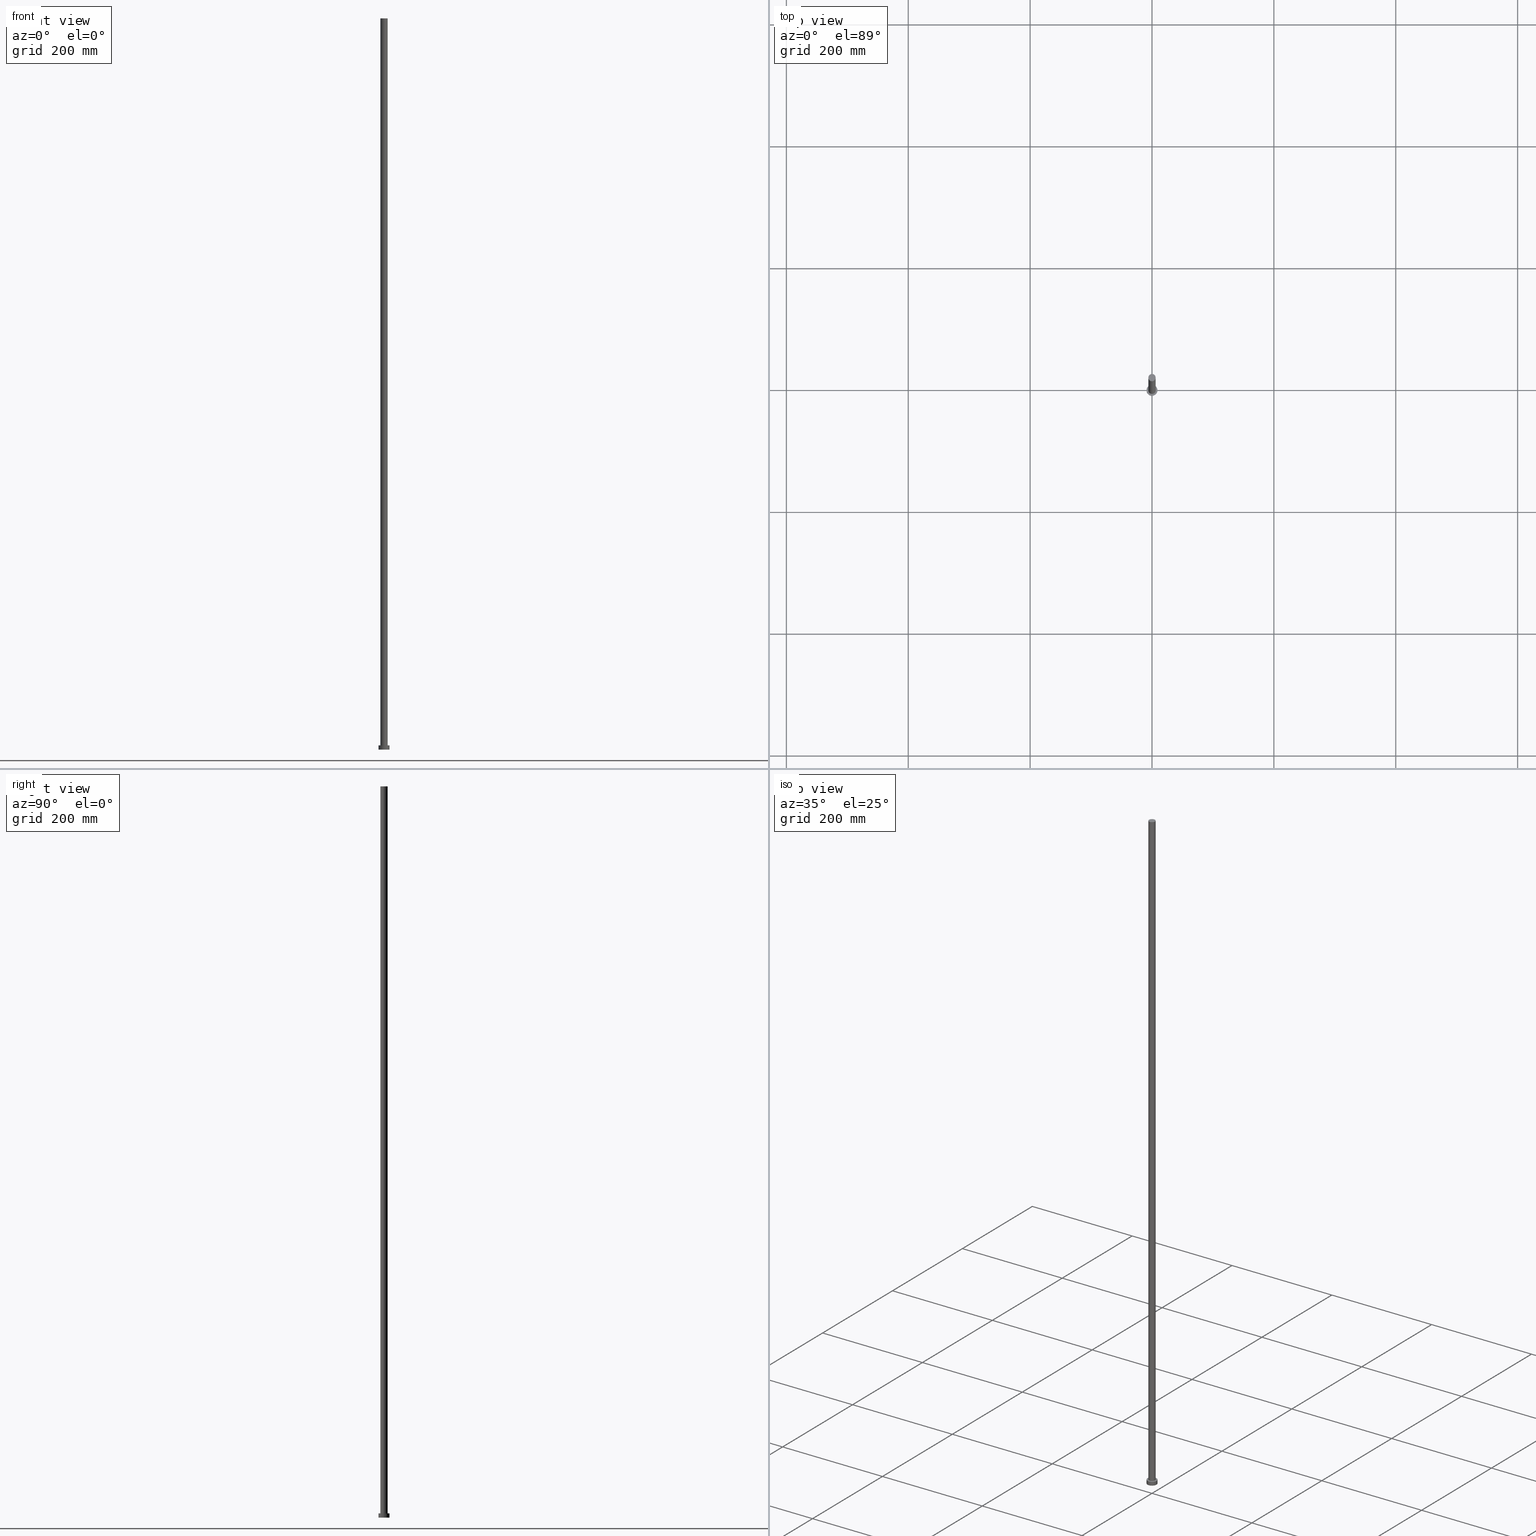
[diagram: canonical four-view strip — front | top / right | iso, engineering-drawing reading convention]
A machine part, canonical four-view strip (front | top / right | iso — engineering-drawing reading convention). The complete STEP part file that produces these views, byte-faithful:
ISO-10303-21;
HEADER;
FILE_DESCRIPTION (( 'STEP AP203' ),
    '1' );
FILE_NAME ('e8db.STEP',
    '2023-02-12T11:04:13',
    ( '' ),
    ( '' ),
    'SwSTEP 2.0',
    'SolidWorks 2019',
    '' );
FILE_SCHEMA (( 'CONFIG_CONTROL_DESIGN' ));
ENDSEC;

DATA;
#1 = DIRECTION ( 'NONE',  ( 1.000000000000000000, 0.000000000000000000, 0.000000000000000000 ) ) ;
#2 = CIRCLE ( 'NONE', #51, 6.000000000000000888 ) ;
#3 = LINE ( 'NONE', #255, #222 ) ;
#4 = PERSON_AND_ORGANIZATION ( #10, #39 ) ;
#5 = CC_DESIGN_SECURITY_CLASSIFICATION ( #114, ( #146 ) ) ;
#6 = DATE_TIME_ROLE ( 'classification_date' ) ;
#7 = CC_DESIGN_APPROVAL ( #141, ( #254 ) ) ;
#8 = EDGE_CURVE ( 'NONE', #34, #202, #127, .T. ) ;
#9 = DIRECTION ( 'NONE',  ( 1.000000000000000000, 0.000000000000000000, -0.000000000000000000 ) ) ;
#10 = PERSON ( 'NEUR�EN�', 'NEUR�EN�', 'NEUR�EN�', ('NEUR�EN�'), ('NEUR�EN�'), ('NEUR�EN�') ) ;
#11 = DIRECTION ( 'NONE',  ( -0.000000000000000000, -0.000000000000000000, -1.000000000000000000 ) ) ;
#12 = FACE_OUTER_BOUND ( 'NONE', #218, .T. ) ;
#13 = DIRECTION ( 'NONE',  ( -1.000000000000000000, 0.000000000000000000, 0.000000000000000000 ) ) ;
#14 = ORIENTED_EDGE ( 'NONE', *, *, #149, .F. ) ;
#15 = AXIS2_PLACEMENT_3D ( 'NONE', #139, #17, #13 ) ;
#16 = APPLICATION_PROTOCOL_DEFINITION ( 'international standard', 'config_control_design', 1994, #182 ) ;
#17 = DIRECTION ( 'NONE',  ( -0.000000000000000000, -0.000000000000000000, -1.000000000000000000 ) ) ;
#18 = UNCERTAINTY_MEASURE_WITH_UNIT (LENGTH_MEASURE( 1.000000000000000082E-05 ), #72, 'distance_accuracy_value', 'NONE');
#19 = DIRECTION ( 'NONE',  ( 1.000000000000000000, 0.000000000000000000, 0.000000000000000000 ) ) ;
#20 = ORIENTED_EDGE ( 'NONE', *, *, #145, .T. ) ;
#21 = DIRECTION ( 'NONE',  ( -0.000000000000000000, -0.000000000000000000, -1.000000000000000000 ) ) ;
#22 = AXIS2_PLACEMENT_3D ( 'NONE', #170, #97, #192 ) ;
#23 = ORIENTED_EDGE ( 'NONE', *, *, #149, .T. ) ;
#24 = DATE_TIME_ROLE ( 'creation_date' ) ;
#25 = PERSON_AND_ORGANIZATION ( #10, #39 ) ;
#26 = CC_DESIGN_PERSON_AND_ORGANIZATION_ASSIGNMENT ( #25, #158, ( #114 ) ) ;
#27 = CIRCLE ( 'NONE', #183, 9.000000000000000000 ) ;
#28 = PRODUCT ( 'e8db', 'e8db', '', ( #134 ) ) ;
#29 = LINE ( 'NONE', #87, #118 ) ;
#30 = PRODUCT_RELATED_PRODUCT_CATEGORY ( 'detail', '', ( #28 ) ) ;
#31 = PLANE ( 'NONE',  #190 ) ;
#32 = ADVANCED_FACE ( 'NONE', ( #102, #223 ), #239, .T. ) ;
#33 = PERSON_AND_ORGANIZATION_ROLE ( 'design_owner' ) ;
#34 = VERTEX_POINT ( 'NONE', #178 ) ;
#35 =( GEOMETRIC_REPRESENTATION_CONTEXT ( 3 ) GLOBAL_UNCERTAINTY_ASSIGNED_CONTEXT ( ( #18 ) ) GLOBAL_UNIT_ASSIGNED_CONTEXT ( ( #72, #155, #251 ) ) REPRESENTATION_CONTEXT ( 'NONE', 'WORKASPACE' ) );
#36 = EDGE_LOOP ( 'NONE', ( #49, #93 ) ) ;
#37 = DIRECTION ( 'NONE',  ( 0.000000000000000000, 0.000000000000000000, 1.000000000000000000 ) ) ;
#38 = CALENDAR_DATE ( 2023, 12, 2 ) ;
#39 = ORGANIZATION ( 'NEUR�EN�', 'NEUR�EN�', '' ) ;
#40 = CLOSED_SHELL ( 'NONE', ( #53, #63, #235, #32, #111, #42, #219 ) ) ;
#41 = COORDINATED_UNIVERSAL_TIME_OFFSET ( 1, 0, .AHEAD. ) ;
#42 = ADVANCED_FACE ( 'NONE', ( #229 ), #129, .T. ) ;
#43 = COORDINATED_UNIVERSAL_TIME_OFFSET ( 1, 0, .AHEAD. ) ;
#44 = DATE_AND_TIME ( #38, #88 ) ;
#45 = CC_DESIGN_PERSON_AND_ORGANIZATION_ASSIGNMENT ( #171, #33, ( #28 ) ) ;
#46 = CIRCLE ( 'NONE', #162, 9.000000000000000000 ) ;
#47 = CARTESIAN_POINT ( 'NONE',  ( -9.000000000000000000, 0.000000000000000000, 7.000000000000000000 ) ) ;
#48 = LOCAL_TIME ( 12, 4, 13.00000000000000000, #99 ) ;
#49 = ORIENTED_EDGE ( 'NONE', *, *, #85, .T. ) ;
#50 = DIRECTION ( 'NONE',  ( -1.000000000000000000, 0.000000000000000000, 0.000000000000000000 ) ) ;
#51 = AXIS2_PLACEMENT_3D ( 'NONE', #55, #113, #1 ) ;
#52 = CARTESIAN_POINT ( 'NONE',  ( 0.000000000000000000, 0.000000000000000000, 1200.000000000000000 ) ) ;
#53 = ADVANCED_FACE ( 'NONE', ( #224 ), #179, .T. ) ;
#54 = DIRECTION ( 'NONE',  ( 0.000000000000000000, 0.000000000000000000, 1.000000000000000000 ) ) ;
#55 = CARTESIAN_POINT ( 'NONE',  ( 0.000000000000000000, 0.000000000000000000, 1200.000000000000000 ) ) ;
#56 = VERTEX_POINT ( 'NONE', #248 ) ;
#57 = CC_DESIGN_PERSON_AND_ORGANIZATION_ASSIGNMENT ( #100, #173, ( #254 ) ) ;
#58 = ORIENTED_EDGE ( 'NONE', *, *, #8, .T. ) ;
#59 = VERTEX_POINT ( 'NONE', #108 ) ;
#60 = ORIENTED_EDGE ( 'NONE', *, *, #184, .T. ) ;
#61 = DATE_AND_TIME ( #159, #194 ) ;
#62 = PERSON_AND_ORGANIZATION ( #10, #39 ) ;
#63 = ADVANCED_FACE ( 'NONE', ( #64 ), #209, .T. ) ;
#64 = FACE_OUTER_BOUND ( 'NONE', #208, .T. ) ;
#65 = CARTESIAN_POINT ( 'NONE',  ( 0.000000000000000000, 0.000000000000000000, 0.000000000000000000 ) ) ;
#66 = DIRECTION ( 'NONE',  ( -0.000000000000000000, -0.000000000000000000, -1.000000000000000000 ) ) ;
#67 = ORIENTED_EDGE ( 'NONE', *, *, #147, .T. ) ;
#68 = CARTESIAN_POINT ( 'NONE',  ( -9.000000000000000000, 0.000000000000000000, 0.000000000000000000 ) ) ;
#69 = ORIENTED_EDGE ( 'NONE', *, *, #230, .F. ) ;
#70 = CC_DESIGN_APPROVAL ( #107, ( #114 ) ) ;
#71 = PERSON_AND_ORGANIZATION ( #10, #39 ) ;
#72 =( LENGTH_UNIT ( ) NAMED_UNIT ( * ) SI_UNIT ( .MILLI., .METRE. ) );
#73 = PLANE ( 'NONE',  #80 ) ;
#74 = APPROVAL_STATUS ( 'not_yet_approved' ) ;
#75 = VERTEX_POINT ( 'NONE', #177 ) ;
#76 = COORDINATED_UNIVERSAL_TIME_OFFSET ( 1, 0, .AHEAD. ) ;
#77 = CARTESIAN_POINT ( 'NONE',  ( 0.000000000000000000, 0.000000000000000000, 7.000000000000000000 ) ) ;
#78 = EDGE_CURVE ( 'NONE', #75, #138, #204, .T. ) ;
#79 = PERSON_AND_ORGANIZATION_ROLE ( 'creator' ) ;
#80 = AXIS2_PLACEMENT_3D ( 'NONE', #52, #37, #135 ) ;
#81 = APPROVAL_ROLE ( '' ) ;
#82 = DIRECTION ( 'NONE',  ( 0.000000000000000000, 0.000000000000000000, 1.000000000000000000 ) ) ;
#83 = VERTEX_POINT ( 'NONE', #151 ) ;
#84 = AXIS2_PLACEMENT_3D ( 'NONE', #207, #109, #50 ) ;
#85 = EDGE_CURVE ( 'NONE', #75, #59, #241, .T. ) ;
#86 = ORIENTED_EDGE ( 'NONE', *, *, #232, .F. ) ;
#87 = CARTESIAN_POINT ( 'NONE',  ( 9.000000000000000000, 1.102182119232617714E-15, 7.000000000000000000 ) ) ;
#88 = LOCAL_TIME ( 12, 4, 13.00000000000000000, #122 ) ;
#89 = CC_DESIGN_DATE_AND_TIME_ASSIGNMENT ( #195, #24, ( #254 ) ) ;
#90 = VECTOR ( 'NONE', #226, 1000.000000000000000 ) ;
#91 = ORIENTED_EDGE ( 'NONE', *, *, #85, .F. ) ;
#92 = DIRECTION ( 'NONE',  ( 1.000000000000000000, 0.000000000000000000, 0.000000000000000000 ) ) ;
#93 = ORIENTED_EDGE ( 'NONE', *, *, #230, .T. ) ;
#94 = CARTESIAN_POINT ( 'NONE',  ( 6.000000000000000888, 7.347880794884120722E-16, 1200.000000000000000 ) ) ;
#95 = DIRECTION ( 'NONE',  ( -0.000000000000000000, -0.000000000000000000, -1.000000000000000000 ) ) ;
#96 = EDGE_LOOP ( 'NONE', ( #67, #60 ) ) ;
#97 = DIRECTION ( 'NONE',  ( 0.000000000000000000, 0.000000000000000000, 1.000000000000000000 ) ) ;
#98 = ORIENTED_EDGE ( 'NONE', *, *, #121, .T. ) ;
#99 = COORDINATED_UNIVERSAL_TIME_OFFSET ( 1, 0, .AHEAD. ) ;
#100 = PERSON_AND_ORGANIZATION ( #10, #39 ) ;
#101 = VECTOR ( 'NONE', #95, 1000.000000000000000 ) ;
#102 = FACE_BOUND ( 'NONE', #140, .T. ) ;
#103 = EDGE_CURVE ( 'NONE', #138, #56, #46, .T. ) ;
#104 = CIRCLE ( 'NONE', #237, 6.000000000000000888 ) ;
#105 = CIRCLE ( 'NONE', #22, 6.000000000000000888 ) ;
#106 = DIRECTION ( 'NONE',  ( 1.000000000000000000, 0.000000000000000000, 0.000000000000000000 ) ) ;
#107 = APPROVAL ( #144, 'NEUR�EN�' ) ;
#108 = CARTESIAN_POINT ( 'NONE',  ( 9.000000000000000000, 1.102182119232617714E-15, 7.000000000000000000 ) ) ;
#109 = DIRECTION ( 'NONE',  ( -0.000000000000000000, -0.000000000000000000, -1.000000000000000000 ) ) ;
#110 = APPROVAL_PERSON_ORGANIZATION ( #220, #210, #238 ) ;
#111 = ADVANCED_FACE ( 'NONE', ( #12 ), #31, .F. ) ;
#112 = CARTESIAN_POINT ( 'NONE',  ( -6.000000000000000888, 0.000000000000000000, 7.000000000000000000 ) ) ;
#113 = DIRECTION ( 'NONE',  ( 0.000000000000000000, 0.000000000000000000, 1.000000000000000000 ) ) ;
#114 = SECURITY_CLASSIFICATION ( '', '', #161 ) ;
#115 = DIRECTION ( 'NONE',  ( 1.000000000000000000, 0.000000000000000000, 0.000000000000000000 ) ) ;
#116 = ORIENTED_EDGE ( 'NONE', *, *, #78, .T. ) ;
#117 = ORIENTED_EDGE ( 'NONE', *, *, #246, .T. ) ;
#118 = VECTOR ( 'NONE', #167, 1000.000000000000000 ) ;
#119 = DIRECTION ( 'NONE',  ( 0.000000000000000000, 0.000000000000000000, 1.000000000000000000 ) ) ;
#120 = ORIENTED_EDGE ( 'NONE', *, *, #145, .F. ) ;
#121 = EDGE_CURVE ( 'NONE', #56, #138, #27, .T. ) ;
#122 = COORDINATED_UNIVERSAL_TIME_OFFSET ( 1, 0, .AHEAD. ) ;
#123 = PERSON_AND_ORGANIZATION ( #10, #39 ) ;
#124 = SHAPE_DEFINITION_REPRESENTATION ( #244, #249 ) ;
#125 = CARTESIAN_POINT ( 'NONE',  ( 0.000000000000000000, 0.000000000000000000, 7.000000000000000000 ) ) ;
#126 = DATE_AND_TIME ( #175, #48 ) ;
#127 = CIRCLE ( 'NONE', #136, 6.000000000000000888 ) ;
#128 = CARTESIAN_POINT ( 'NONE',  ( 0.000000000000000000, 0.000000000000000000, 7.000000000000000000 ) ) ;
#129 = CYLINDRICAL_SURFACE ( 'NONE', #84, 6.000000000000000888 ) ;
#130 = LOCAL_TIME ( 12, 4, 13.00000000000000000, #41 ) ;
#131 = AXIS2_PLACEMENT_3D ( 'NONE', #203, #164, #106 ) ;
#132 = ORIENTED_EDGE ( 'NONE', *, *, #103, .F. ) ;
#133 = DIRECTION ( 'NONE',  ( -1.000000000000000000, 0.000000000000000000, 0.000000000000000000 ) ) ;
#134 = MECHANICAL_CONTEXT ( 'NONE', #182, 'mechanical' ) ;
#135 = DIRECTION ( 'NONE',  ( 1.000000000000000000, 0.000000000000000000, -0.000000000000000000 ) ) ;
#136 = AXIS2_PLACEMENT_3D ( 'NONE', #125, #82, #200 ) ;
#137 = APPROVAL_STATUS ( 'not_yet_approved' ) ;
#138 = VERTEX_POINT ( 'NONE', #68 ) ;
#139 = CARTESIAN_POINT ( 'NONE',  ( 0.000000000000000000, 0.000000000000000000, 7.000000000000000000 ) ) ;
#140 = EDGE_LOOP ( 'NONE', ( #86, #193 ) ) ;
#141 = APPROVAL ( #137, 'NEUR�EN�' ) ;
#142 = DIRECTION ( 'NONE',  ( 1.000000000000000000, 0.000000000000000000, -0.000000000000000000 ) ) ;
#143 = CALENDAR_DATE ( 2023, 12, 2 ) ;
#144 = APPROVAL_STATUS ( 'not_yet_approved' ) ;
#145 = EDGE_CURVE ( 'NONE', #59, #56, #29, .T. ) ;
#146 = PRODUCT_DEFINITION_FORMATION_WITH_SPECIFIED_SOURCE ( 'LIBOVOLN�', '', #28, .NOT_KNOWN. ) ;
#147 = EDGE_CURVE ( 'NONE', #252, #83, #104, .T. ) ;
#148 = DIRECTION ( 'NONE',  ( 0.000000000000000000, 0.000000000000000000, 1.000000000000000000 ) ) ;
#149 = EDGE_CURVE ( 'NONE', #83, #34, #185, .T. ) ;
#150 = DIRECTION ( 'NONE',  ( -1.000000000000000000, 0.000000000000000000, 0.000000000000000000 ) ) ;
#151 = CARTESIAN_POINT ( 'NONE',  ( 6.000000000000000888, 7.347880794884120722E-16, 1200.000000000000000 ) ) ;
#152 = DIRECTION ( 'NONE',  ( 0.000000000000000000, 0.000000000000000000, 1.000000000000000000 ) ) ;
#153 = ORIENTED_EDGE ( 'NONE', *, *, #184, .F. ) ;
#154 = CC_DESIGN_DATE_AND_TIME_ASSIGNMENT ( #174, #6, ( #114 ) ) ;
#155 =( NAMED_UNIT ( * ) PLANE_ANGLE_UNIT ( ) SI_UNIT ( $, .RADIAN. ) );
#156 = MANIFOLD_SOLID_BREP ( 'P�idat vysunut�m3', #40 ) ;
#157 = ORIENTED_EDGE ( 'NONE', *, *, #232, .T. ) ;
#158 = PERSON_AND_ORGANIZATION_ROLE ( 'classification_officer' ) ;
#159 = CALENDAR_DATE ( 2023, 12, 2 ) ;
#160 = APPROVAL_ROLE ( '' ) ;
#161 = SECURITY_CLASSIFICATION_LEVEL ( 'unclassified' ) ;
#162 = AXIS2_PLACEMENT_3D ( 'NONE', #247, #180, #201 ) ;
#163 = APPROVAL_PERSON_ORGANIZATION ( #71, #141, #81 ) ;
#164 = DIRECTION ( 'NONE',  ( 0.000000000000000000, 0.000000000000000000, 1.000000000000000000 ) ) ;
#165 = EDGE_LOOP ( 'NONE', ( #14, #234, #117, #157 ) ) ;
#166 = ORIENTED_EDGE ( 'NONE', *, *, #103, .T. ) ;
#167 = DIRECTION ( 'NONE',  ( -0.000000000000000000, -0.000000000000000000, -1.000000000000000000 ) ) ;
#168 = CARTESIAN_POINT ( 'NONE',  ( 0.000000000000000000, 0.000000000000000000, 1200.000000000000000 ) ) ;
#169 = ORIENTED_EDGE ( 'NONE', *, *, #246, .F. ) ;
#170 = CARTESIAN_POINT ( 'NONE',  ( 0.000000000000000000, 0.000000000000000000, 7.000000000000000000 ) ) ;
#171 = PERSON_AND_ORGANIZATION ( #10, #39 ) ;
#172 = FACE_OUTER_BOUND ( 'NONE', #189, .T. ) ;
#173 = PERSON_AND_ORGANIZATION_ROLE ( 'creator' ) ;
#174 = DATE_AND_TIME ( #240, #233 ) ;
#175 = CALENDAR_DATE ( 2023, 12, 2 ) ;
#176 = AXIS2_PLACEMENT_3D ( 'NONE', #216, #54, #115 ) ;
#177 = CARTESIAN_POINT ( 'NONE',  ( -9.000000000000000000, 0.000000000000000000, 7.000000000000000000 ) ) ;
#178 = CARTESIAN_POINT ( 'NONE',  ( 6.000000000000000888, 7.347880794884120722E-16, 7.000000000000000000 ) ) ;
#179 = CYLINDRICAL_SURFACE ( 'NONE', #227, 6.000000000000000888 ) ;
#180 = DIRECTION ( 'NONE',  ( 0.000000000000000000, 0.000000000000000000, 1.000000000000000000 ) ) ;
#181 = APPROVAL_PERSON_ORGANIZATION ( #62, #107, #160 ) ;
#182 = APPLICATION_CONTEXT ( 'configuration controlled 3d designs of mechanical parts and assemblies' ) ;
#183 = AXIS2_PLACEMENT_3D ( 'NONE', #65, #250, #225 ) ;
#184 = EDGE_CURVE ( 'NONE', #83, #252, #2, .T. ) ;
#185 = LINE ( 'NONE', #94, #101 ) ;
#186 = CC_DESIGN_APPROVAL ( #210, ( #146 ) ) ;
#187 = DESIGN_CONTEXT ( 'detailed design', #212, 'design' ) ;
#188 = FACE_OUTER_BOUND ( 'NONE', #96, .T. ) ;
#189 = EDGE_LOOP ( 'NONE', ( #120, #91, #116, #166 ) ) ;
#190 = AXIS2_PLACEMENT_3D ( 'NONE', #245, #148, #9 ) ;
#191 = CARTESIAN_POINT ( 'NONE',  ( 0.000000000000000000, 0.000000000000000000, 0.000000000000000000 ) ) ;
#192 = DIRECTION ( 'NONE',  ( 1.000000000000000000, 0.000000000000000000, 0.000000000000000000 ) ) ;
#193 = ORIENTED_EDGE ( 'NONE', *, *, #8, .F. ) ;
#194 = LOCAL_TIME ( 12, 4, 13.00000000000000000, #43 ) ;
#195 = DATE_AND_TIME ( #143, #130 ) ;
#196 = APPROVAL_DATE_TIME ( #44, #141 ) ;
#197 = CC_DESIGN_PERSON_AND_ORGANIZATION_ASSIGNMENT ( #123, #198, ( #146 ) ) ;
#198 = PERSON_AND_ORGANIZATION_ROLE ( 'design_supplier' ) ;
#199 = AXIS2_PLACEMENT_3D ( 'NONE', #191, #152, #19 ) ;
#200 = DIRECTION ( 'NONE',  ( 1.000000000000000000, 0.000000000000000000, 0.000000000000000000 ) ) ;
#201 = DIRECTION ( 'NONE',  ( 1.000000000000000000, 0.000000000000000000, 0.000000000000000000 ) ) ;
#202 = VERTEX_POINT ( 'NONE', #112 ) ;
#203 = CARTESIAN_POINT ( 'NONE',  ( 0.000000000000000000, 0.000000000000000000, 7.000000000000000000 ) ) ;
#204 = LINE ( 'NONE', #47, #90 ) ;
#205 = CC_DESIGN_PERSON_AND_ORGANIZATION_ASSIGNMENT ( #4, #79, ( #146 ) ) ;
#206 = AXIS2_PLACEMENT_3D ( 'NONE', #128, #11, #150 ) ;
#207 = CARTESIAN_POINT ( 'NONE',  ( 0.000000000000000000, 0.000000000000000000, 1200.000000000000000 ) ) ;
#208 = EDGE_LOOP ( 'NONE', ( #69, #20, #98, #215 ) ) ;
#209 = CYLINDRICAL_SURFACE ( 'NONE', #206, 9.000000000000000000 ) ;
#210 = APPROVAL ( #74, 'NEUR�EN�' ) ;
#211 = AXIS2_PLACEMENT_3D ( 'NONE', #77, #236, #142 ) ;
#212 = APPLICATION_CONTEXT ( 'configuration controlled 3d designs of mechanical parts and assemblies' ) ;
#213 = EDGE_LOOP ( 'NONE', ( #153, #23, #58, #169 ) ) ;
#214 = CARTESIAN_POINT ( 'NONE',  ( 0.000000000000000000, 0.000000000000000000, 1200.000000000000000 ) ) ;
#215 = ORIENTED_EDGE ( 'NONE', *, *, #78, .F. ) ;
#216 = CARTESIAN_POINT ( 'NONE',  ( 0.000000000000000000, 0.000000000000000000, 7.000000000000000000 ) ) ;
#217 = CARTESIAN_POINT ( 'NONE',  ( -6.000000000000000888, 0.000000000000000000, 1200.000000000000000 ) ) ;
#218 = EDGE_LOOP ( 'NONE', ( #132, #228 ) ) ;
#219 = ADVANCED_FACE ( 'NONE', ( #188 ), #73, .T. ) ;
#220 = PERSON_AND_ORGANIZATION ( #10, #39 ) ;
#221 = APPROVAL_DATE_TIME ( #61, #107 ) ;
#222 = VECTOR ( 'NONE', #21, 1000.000000000000000 ) ;
#223 = FACE_OUTER_BOUND ( 'NONE', #36, .T. ) ;
#224 = FACE_OUTER_BOUND ( 'NONE', #213, .T. ) ;
#225 = DIRECTION ( 'NONE',  ( 1.000000000000000000, 0.000000000000000000, 0.000000000000000000 ) ) ;
#226 = DIRECTION ( 'NONE',  ( -0.000000000000000000, -0.000000000000000000, -1.000000000000000000 ) ) ;
#227 = AXIS2_PLACEMENT_3D ( 'NONE', #168, #66, #133 ) ;
#228 = ORIENTED_EDGE ( 'NONE', *, *, #121, .F. ) ;
#229 = FACE_OUTER_BOUND ( 'NONE', #165, .T. ) ;
#230 = EDGE_CURVE ( 'NONE', #59, #75, #243, .T. ) ;
#231 = CYLINDRICAL_SURFACE ( 'NONE', #15, 9.000000000000000000 ) ;
#232 = EDGE_CURVE ( 'NONE', #202, #34, #105, .T. ) ;
#233 = LOCAL_TIME ( 12, 4, 13.00000000000000000, #76 ) ;
#234 = ORIENTED_EDGE ( 'NONE', *, *, #147, .F. ) ;
#235 = ADVANCED_FACE ( 'NONE', ( #172 ), #231, .T. ) ;
#236 = DIRECTION ( 'NONE',  ( 0.000000000000000000, 0.000000000000000000, 1.000000000000000000 ) ) ;
#237 = AXIS2_PLACEMENT_3D ( 'NONE', #214, #119, #92 ) ;
#238 = APPROVAL_ROLE ( '' ) ;
#239 = PLANE ( 'NONE',  #211 ) ;
#240 = CALENDAR_DATE ( 2023, 12, 2 ) ;
#241 = CIRCLE ( 'NONE', #131, 9.000000000000000000 ) ;
#242 = APPROVAL_DATE_TIME ( #126, #210 ) ;
#243 = CIRCLE ( 'NONE', #176, 9.000000000000000000 ) ;
#244 = PRODUCT_DEFINITION_SHAPE ( 'NONE', 'NONE',  #254 ) ;
#245 = CARTESIAN_POINT ( 'NONE',  ( 0.000000000000000000, 0.000000000000000000, 0.000000000000000000 ) ) ;
#246 = EDGE_CURVE ( 'NONE', #252, #202, #3, .T. ) ;
#247 = CARTESIAN_POINT ( 'NONE',  ( 0.000000000000000000, 0.000000000000000000, 0.000000000000000000 ) ) ;
#248 = CARTESIAN_POINT ( 'NONE',  ( 9.000000000000000000, 1.102182119232617714E-15, 0.000000000000000000 ) ) ;
#249 = ADVANCED_BREP_SHAPE_REPRESENTATION ( 'e8db', ( #156, #199 ), #35 ) ;
#250 = DIRECTION ( 'NONE',  ( 0.000000000000000000, 0.000000000000000000, 1.000000000000000000 ) ) ;
#251 =( NAMED_UNIT ( * ) SI_UNIT ( $, .STERADIAN. ) SOLID_ANGLE_UNIT ( ) );
#252 = VERTEX_POINT ( 'NONE', #217 ) ;
#253 = APPLICATION_PROTOCOL_DEFINITION ( 'international standard', 'config_control_design', 1994, #212 ) ;
#254 = PRODUCT_DEFINITION ( 'NEZN�M�', '', #146, #187 ) ;
#255 = CARTESIAN_POINT ( 'NONE',  ( -6.000000000000000888, 0.000000000000000000, 1200.000000000000000 ) ) ;
ENDSEC;
END-ISO-10303-21;
